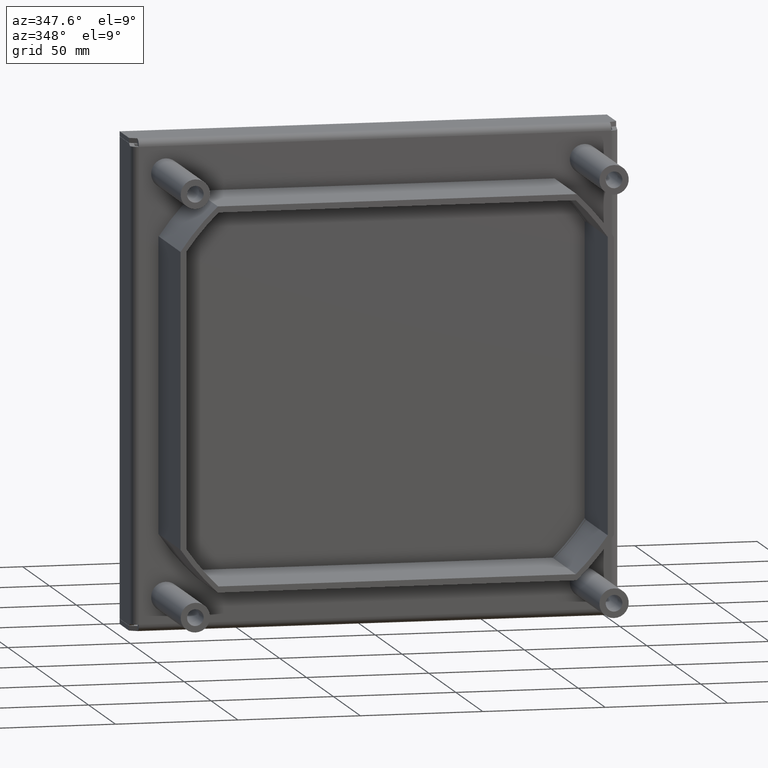
[diagram: clean part render]
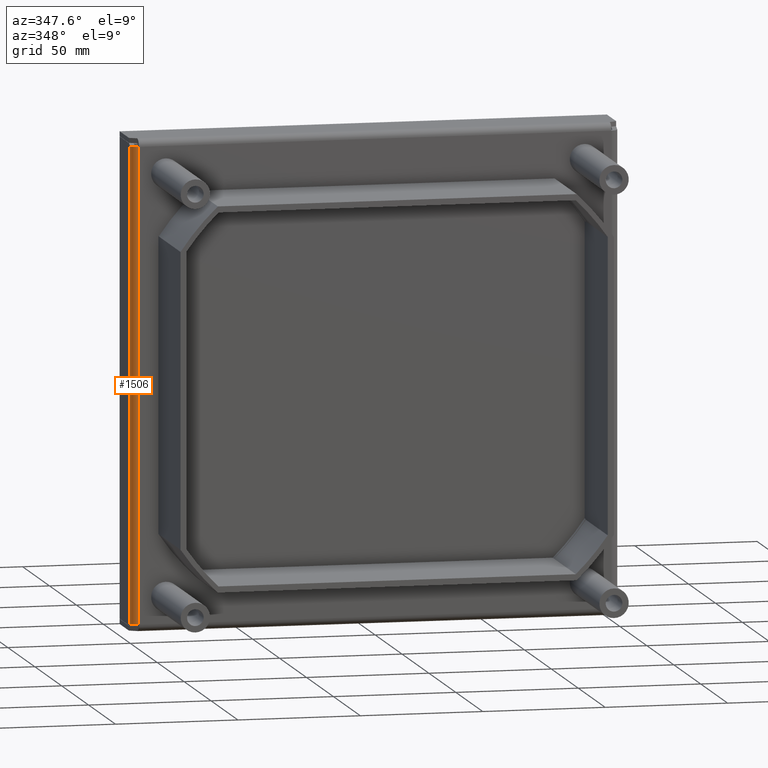
[diagram: same view with one face highlighted and labeled with its STEP entity id]
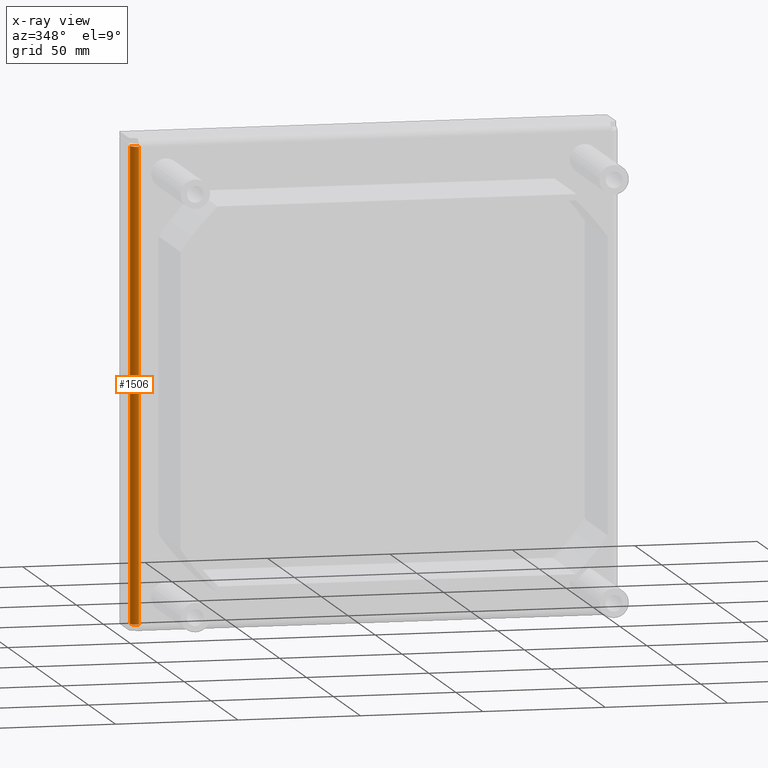
[diagram: x-ray of the same camera — body ghosted, the highlighted face saturated]
A machine part, auxiliary view. The second image highlights one B-rep face of the part: STEP entity #1506.
The next image is the same camera in x-ray: the body ghosted, the highlighted face saturated — about 0% of this face is hidden behind the body in this view.
In plain terms, the highlighted cylindrical surface (edge-blend (fillet) strip) has radius 3 mm, axis along (0, 0, 1).
Its self-contained STEP definition (entity closure, byte-faithful):
#513=DIRECTION('',(1.E0,0.E0,0.E0));
#514=VECTOR('',#513,1.93E2);
#515=CARTESIAN_POINT('',(-9.65E1,0.E0,-9.65E1));
#516=LINE('',#515,#514);
#520=DIRECTION('',(-1.E0,0.E0,0.E0));
#521=VECTOR('',#520,1.93E2);
#522=CARTESIAN_POINT('',(9.65E1,3.E0,-9.95E1));
#523=LINE('',#522,#521);
#527=CARTESIAN_POINT('',(9.65E1,3.E0,-9.65E1));
#528=DIRECTION('',(-1.E0,0.E0,0.E0));
#529=DIRECTION('',(0.E0,0.E0,-1.E0));
#530=AXIS2_PLACEMENT_3D('',#527,#528,#529);
#794=CARTESIAN_POINT('',(-9.65E1,3.E0,-9.65E1));
#795=DIRECTION('',(1.E0,0.E0,0.E0));
#796=DIRECTION('',(0.E0,-1.E0,0.E0));
#797=AXIS2_PLACEMENT_3D('',#794,#795,#796);
#1135=CARTESIAN_POINT('',(9.65E1,0.E0,-9.65E1));
#1136=VERTEX_POINT('',#1135);
#1137=CARTESIAN_POINT('',(-9.65E1,0.E0,-9.65E1));
#1138=VERTEX_POINT('',#1137);
#1219=CARTESIAN_POINT('',(9.65E1,3.E0,-9.95E1));
#1220=CARTESIAN_POINT('',(-9.65E1,3.E0,-9.95E1));
#1221=VERTEX_POINT('',#1219);
#1222=VERTEX_POINT('',#1220);
#1493=CARTESIAN_POINT('',(2.842170943040E-14,3.E0,-9.65E1));
#1494=DIRECTION('',(-1.E0,0.E0,0.E0));
#1495=DIRECTION('',(0.E0,0.E0,-1.E0));
#1496=AXIS2_PLACEMENT_3D('',#1493,#1494,#1495);
#1497=CYLINDRICAL_SURFACE('',#1496,3.E0);
#1498=ORIENTED_EDGE('',*,*,#1284,.T.);
#1500=ORIENTED_EDGE('',*,*,#1499,.F.);
#1501=ORIENTED_EDGE('',*,*,#1479,.T.);
#1503=ORIENTED_EDGE('',*,*,#1502,.F.);
#1504=EDGE_LOOP('',(#1498,#1500,#1501,#1503));
#1505=FACE_OUTER_BOUND('',#1504,.F.);
#531=CIRCLE('',#530,3.E0);
#798=CIRCLE('',#797,3.E0);
#1284=EDGE_CURVE('',#1138,#1136,#516,.T.);
#1479=EDGE_CURVE('',#1221,#1222,#523,.T.);
#1499=EDGE_CURVE('',#1221,#1136,#531,.T.);
#1502=EDGE_CURVE('',#1138,#1222,#798,.T.);
#1506=ADVANCED_FACE('',(#1505),#1497,.T.);